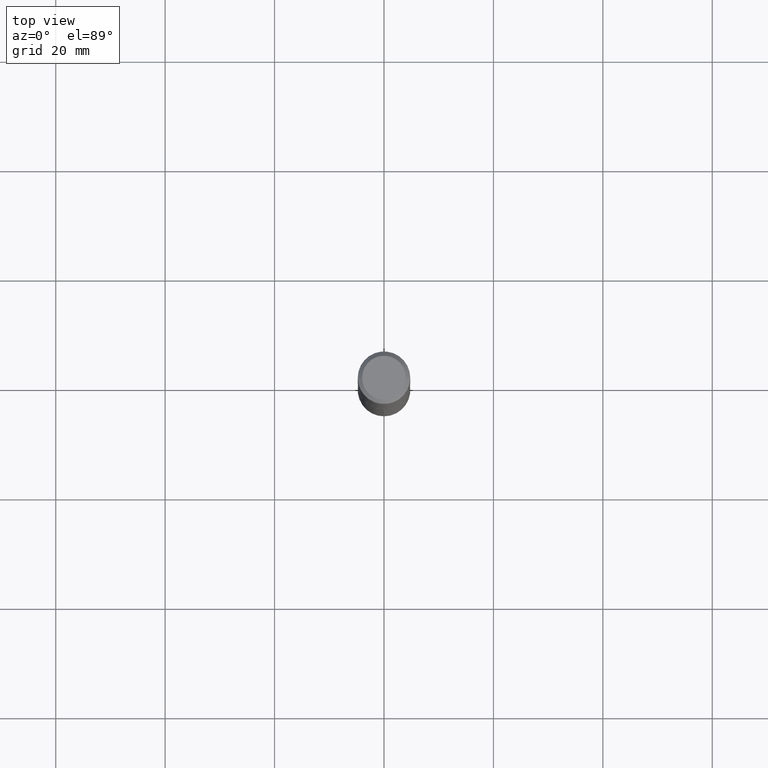
[diagram: clean part render]
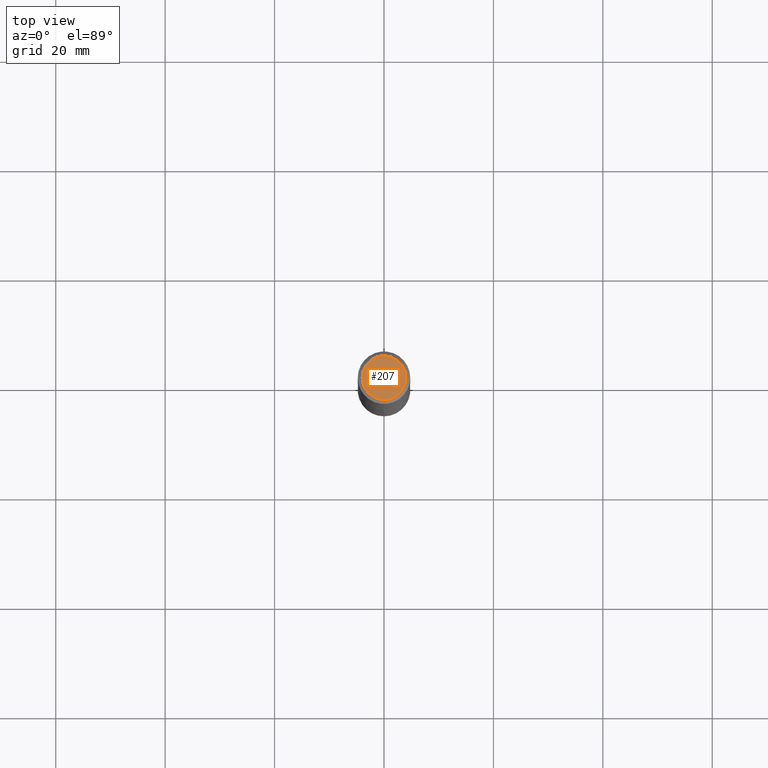
[diagram: same view with one face highlighted and labeled with its STEP entity id]
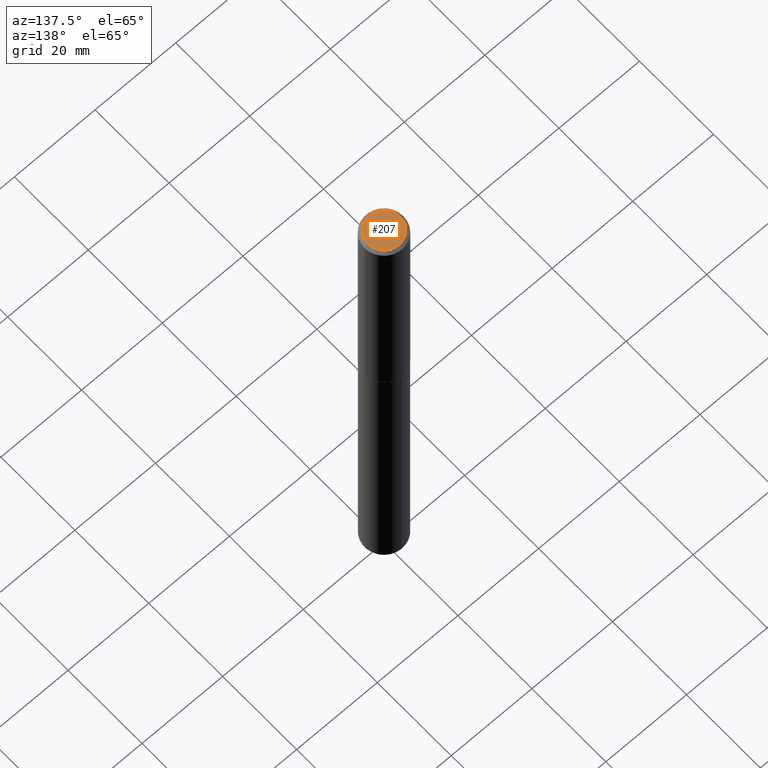
[diagram: same view with one face highlighted and labeled with its STEP entity id]
A machine part, top view. The second image highlights one B-rep face of the part: STEP entity #207.
A second angle (auxiliary view) of the same face is appended — the face is thin or edge-on in the first view.
In plain terms, the highlighted planar face has unit normal (0, -0, -1).
Its self-contained STEP definition (entity closure, byte-faithful):
#54 = PLANE ( 'NONE',  #269 ) ;
#59 = CARTESIAN_POINT ( 'NONE',  ( -0.1577499999999999736, 1.156116758324431759E-15, 4.837354856553074411E-19 ) ) ;
#76 = CIRCLE ( 'NONE', #119, 0.1577499999999999736 ) ;
#109 = DIRECTION ( 'NONE',  ( -2.445468806185136597E-29, 3.491481338843145583E-15, 1.000000000000000000 ) ) ;
#110 = VERTEX_POINT ( 'NONE', #59 ) ;
#111 = DIRECTION ( 'NONE',  ( 2.438088387897960049E-29, -3.491481338843145188E-15, -1.000000000000000000 ) ) ;
#112 = DIRECTION ( 'NONE',  ( 1.000000000000000000, -6.982962677686266711E-15, 4.876176521701035620E-29 ) ) ;
#119 = AXIS2_PLACEMENT_3D ( 'NONE', #206, #109, #112 ) ;
#125 = CARTESIAN_POINT ( 'NONE',  ( 0.1577499999999999736, -1.243993236283063660E-15, 4.837354856714027265E-19 ) ) ;
#128 = EDGE_LOOP ( 'NONE', ( #282, #196 ) ) ;
#132 = FACE_OUTER_BOUND ( 'NONE', #128, .T. ) ;
#171 = EDGE_CURVE ( 'NONE', #289, #110, #76, .T. ) ;
#187 = DIRECTION ( 'NONE',  ( 1.000000000000000000, -6.982962677686266711E-15, 4.876176521701035620E-29 ) ) ;
#196 = ORIENTED_EDGE ( 'NONE', *, *, #171, .T. ) ;
#206 = CARTESIAN_POINT ( 'NONE',  ( -1.182960040634176917E-47, 1.688953421129294557E-33, 4.837354856632017316E-19 ) ) ;
#207 = ADVANCED_FACE ( 'NONE', ( #132 ), #54, .F. ) ;
#209 = CIRCLE ( 'NONE', #350, 0.1577499999999999736 ) ;
#232 = DIRECTION ( 'NONE',  ( -1.000000000000000000, 6.982962677686265922E-15, -4.876176775795935793E-29 ) ) ;
#240 = DIRECTION ( 'NONE',  ( -2.445468806185136597E-29, 3.491481338843145583E-15, 1.000000000000000000 ) ) ;
#269 = AXIS2_PLACEMENT_3D ( 'NONE', #375, #111, #232 ) ;
#279 = EDGE_CURVE ( 'NONE', #110, #289, #209, .T. ) ;
#282 = ORIENTED_EDGE ( 'NONE', *, *, #279, .T. ) ;
#289 = VERTEX_POINT ( 'NONE', #125 ) ;
#350 = AXIS2_PLACEMENT_3D ( 'NONE', #385, #240, #187 ) ;
#375 = CARTESIAN_POINT ( 'NONE',  ( -5.914800203170884586E-48, 8.444767105646472787E-34, 2.418677428316008658E-19 ) ) ;
#385 = CARTESIAN_POINT ( 'NONE',  ( -1.182960040634176917E-47, 1.688953421129294557E-33, 4.837354856632017316E-19 ) ) ;